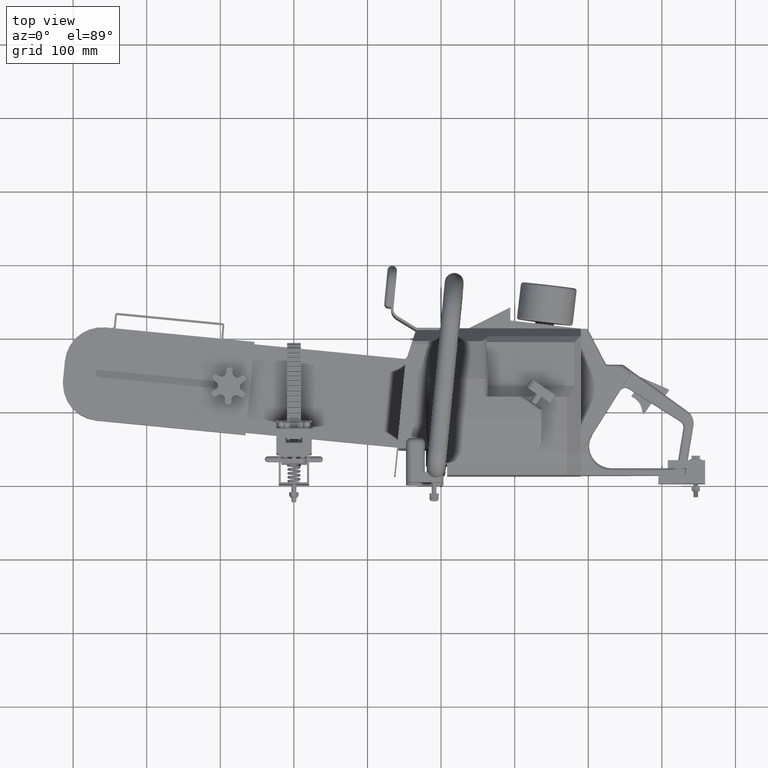
[diagram: clean part render]
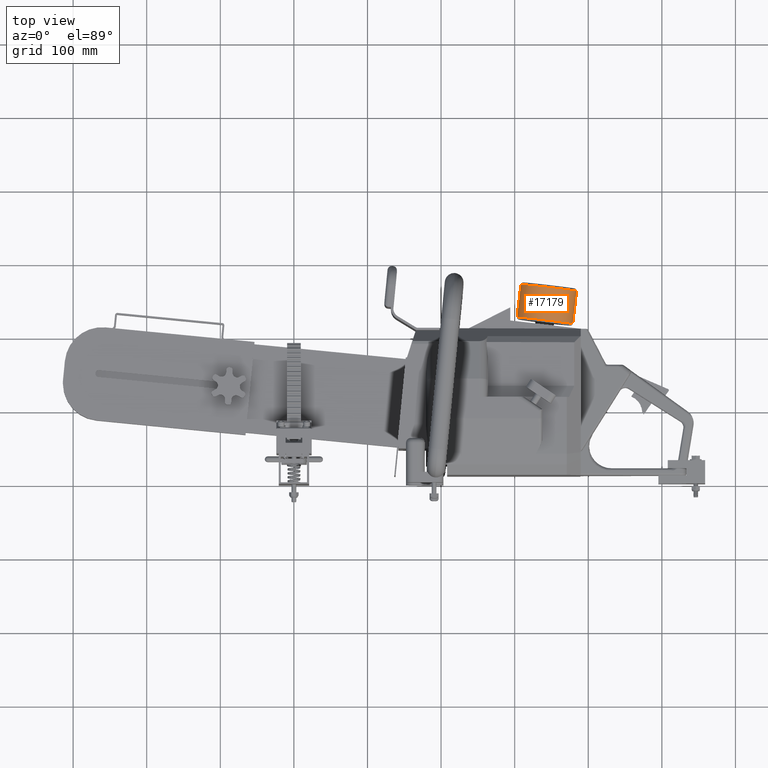
[diagram: same view with one face highlighted and labeled with its STEP entity id]
A machine part, top view. The second image highlights one B-rep face of the part: STEP entity #17179.
In plain terms, the highlighted cylindrical surface (edge-blend (fillet) strip) has radius 38.1 mm, axis along (-0.1171, -0.9931, -0).
Its self-contained STEP definition (entity closure, byte-faithful):
#3307 = CARTESIAN_POINT ( 'NONE',  ( 13.63399917441309300, 10.49168133238684700, 2.446858955583081300 ) ) ;
#3310 = DIRECTION ( 'NONE',  ( -0.1171278403608776600, -0.9931168455989439800, -0.0000000000000000000 ) ) ;
#3311 = DIRECTION ( 'NONE',  ( -0.9931168455989442000, 0.1171278403608769200, 0.0000000000000000000 ) ) ;
#3329 = CARTESIAN_POINT ( 'NONE',  ( 15.13831542285661900, 10.44012917754539800, 2.446858955583081300 ) ) ;
#3335 = DIRECTION ( 'NONE',  ( -0.1171278403608776600, -0.9931168455989439800, -0.0000000000000000000 ) ) ;
#3350 = CARTESIAN_POINT ( 'NONE',  ( 12.15896488605978500, 10.79151269862802900, 2.446858955583081800 ) ) ;
#3356 = DIRECTION ( 'NONE',  ( -0.1171278403608776600, -0.9931168455989439800, -0.0000000000000000000 ) ) ;
#3360 = CARTESIAN_POINT ( 'NONE',  ( 13.42902545378155700, 8.753726852588695100, 2.446858955583081300 ) ) ;
#3385 = DIRECTION ( 'NONE',  ( 0.1171278403608776600, 0.9931168455989439800, 0.0000000000000000000 ) ) ;
#3386 = DIRECTION ( 'NONE',  ( -0.9931168455989439800, 0.1171278403608776600, 0.0000000000000000000 ) ) ;
#12298 = VERTEX_POINT ( 'NONE', #52740 ) ;
#12358 = VERTEX_POINT ( 'NONE', #52800 ) ;
#12359 = VERTEX_POINT ( 'NONE', #52801 ) ;
#12402 = VERTEX_POINT ( 'NONE', #52844 ) ;
#13093 = EDGE_LOOP ( 'NONE', ( #15857, #15858, #15860, #15862 ) ) ;
#15857 = ORIENTED_EDGE ( 'NONE', *, *, #19866, .T. ) ;
#15858 = ORIENTED_EDGE ( 'NONE', *, *, #19883, .T. ) ;
#15860 = ORIENTED_EDGE ( 'NONE', *, *, #19894, .T. ) ;
#15862 = ORIENTED_EDGE ( 'NONE', *, *, #19875, .F. ) ;
#17179 = ADVANCED_FACE ( 'NONE', ( #46569 ), #46573, .T. ) ;
#19866 = EDGE_CURVE ( 'NONE', #12359, #12358, #65673, .T. ) ;
#19875 = EDGE_CURVE ( 'NONE', #12359, #12402, #65684, .T. ) ;
#19883 = EDGE_CURVE ( 'NONE', #12358, #12298, #65690, .T. ) ;
#19894 = EDGE_CURVE ( 'NONE', #12298, #12402, #65710, .T. ) ;
#40571 = AXIS2_PLACEMENT_3D ( 'NONE', #53807, #53801, #53805 ) ;
#46569 = FACE_OUTER_BOUND ( 'NONE', #13093, .T. ) ;
#46573 = CYLINDRICAL_SURFACE ( 'NONE', #40571, 1.500000000000001100 ) ;
#52740 = CARTESIAN_POINT ( 'NONE',  ( 11.93935018538314100, 8.929418613130010800, 2.446858955583081800 ) ) ;
#52800 = CARTESIAN_POINT ( 'NONE',  ( 12.14432390601467700, 10.66737309292816400, 2.446858955583081800 ) ) ;
#52801 = CARTESIAN_POINT ( 'NONE',  ( 15.12367444281151100, 10.31598957184553100, 2.446858955583081300 ) ) ;
#52844 = CARTESIAN_POINT ( 'NONE',  ( 14.91870072217997600, 8.578035092047377600, 2.446858955583081300 ) ) ;
#53801 = DIRECTION ( 'NONE',  ( -0.1171278403608776600, -0.9931168455989439800, -0.0000000000000000000 ) ) ;
#53805 = DIRECTION ( 'NONE',  ( 0.9931168455989442000, -0.1171278403608769200, 0.0000000000000000000 ) ) ;
#53807 = CARTESIAN_POINT ( 'NONE',  ( 13.64864015445820300, 10.61582093808671300, 2.446858955583081300 ) ) ;
#64226 = AXIS2_PLACEMENT_3D ( 'NONE', #3307, #3310, #3311 ) ;
#64244 = AXIS2_PLACEMENT_3D ( 'NONE', #3360, #3385, #3386 ) ;
#65672 = VECTOR ( 'NONE', #3335, 39.37007874015748100 ) ;
#65673 = CIRCLE ( 'NONE', #64226, 1.500000000000001100 ) ;
#65684 = LINE ( 'NONE', #3329, #65672 ) ;
#65690 = LINE ( 'NONE', #3350, #65695 ) ;
#65695 = VECTOR ( 'NONE', #3356, 39.37007874015748100 ) ;
#65710 = CIRCLE ( 'NONE', #64244, 1.500000000000001300 ) ;